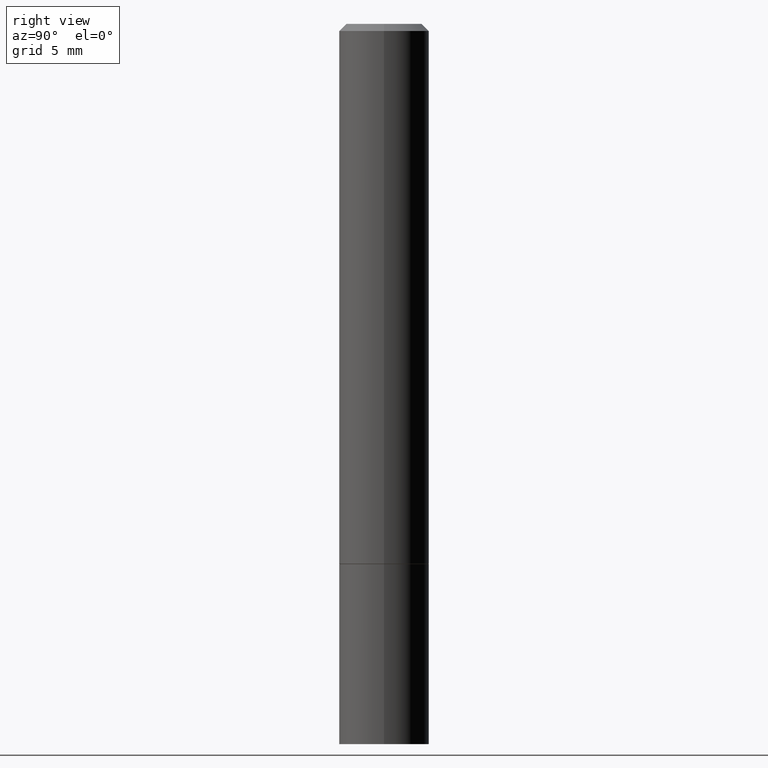
[diagram: clean part render]
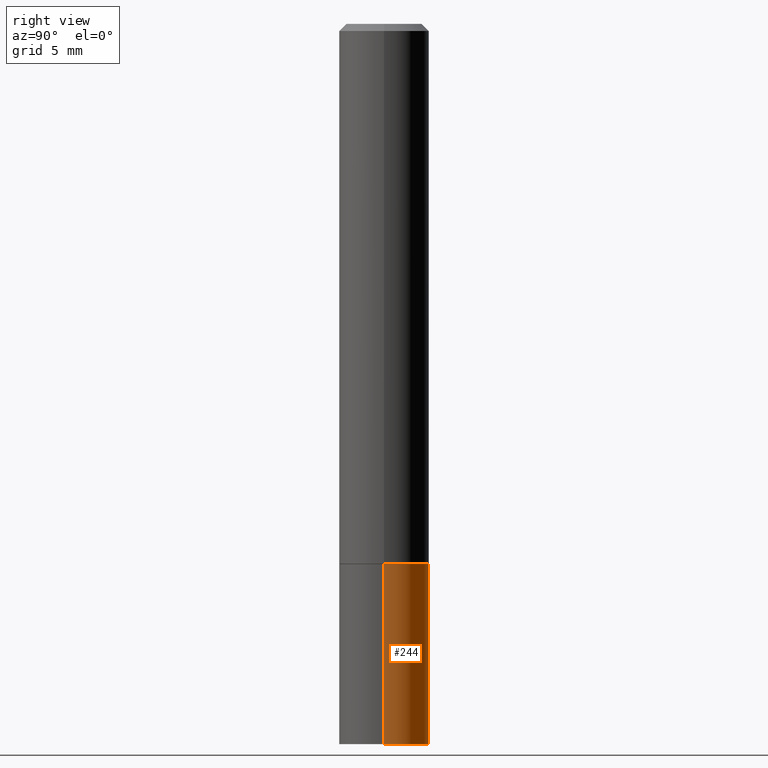
[diagram: same view with one face highlighted and labeled with its STEP entity id]
A machine part, right view. The second image highlights one B-rep face of the part: STEP entity #244.
In plain terms, the highlighted cylindrical surface (partial cylindrical patch) has radius 3.175 mm, axis along (-0, 0, 1).
Its self-contained STEP definition (entity closure, byte-faithful):
#10 = VECTOR ( 'NONE', #197, 39.37007874015748143 ) ;
#11 = DIRECTION ( 'NONE',  ( -2.445468806185136597E-29, 3.491481338843145583E-15, 1.000000000000000000 ) ) ;
#30 = LINE ( 'NONE', #253, #343 ) ;
#32 = CARTESIAN_POINT ( 'NONE',  ( 0.1250000000000000000, -7.855833012397075293E-15, -2.000000000000000000 ) ) ;
#43 = DIRECTION ( 'NONE',  ( 1.000000000000000000, -6.982962677686270655E-15, 0.000000000000000000 ) ) ;
#47 = CARTESIAN_POINT ( 'NONE',  ( -0.1250000000000000000, -5.221913923275378650E-15, -2.000000000000000000 ) ) ;
#53 = DIRECTION ( 'NONE',  ( 1.000000000000000000, -6.982962677686270655E-15, 0.000000000000000000 ) ) ;
#67 = ORIENTED_EDGE ( 'NONE', *, *, #250, .T. ) ;
#69 = CARTESIAN_POINT ( 'NONE',  ( 0.1250000000000000000, -6.110092342975501516E-15, -1.499999999999999778 ) ) ;
#77 = AXIS2_PLACEMENT_3D ( 'NONE', #287, #11, #143 ) ;
#78 = CARTESIAN_POINT ( 'NONE',  ( 3.668203209277704335E-29, -5.237222008264717388E-15, -1.499999999999999778 ) ) ;
#105 = ORIENTED_EDGE ( 'NONE', *, *, #332, .T. ) ;
#108 = CARTESIAN_POINT ( 'NONE',  ( 0.1250000000000000000, -8.728703347107833388E-16, 6.095220969744919741E-30 ) ) ;
#113 = VERTEX_POINT ( 'NONE', #47 ) ;
#117 = VERTEX_POINT ( 'NONE', #269 ) ;
#126 = CIRCLE ( 'NONE', #212, 0.1250000000000000000 ) ;
#139 = CARTESIAN_POINT ( 'NONE',  ( 4.890937612370273194E-29, -6.982962677686291165E-15, -2.000000000000000000 ) ) ;
#143 = DIRECTION ( 'NONE',  ( 1.000000000000000000, -6.982962677686266711E-15, 4.876176775795935793E-29 ) ) ;
#172 = FACE_OUTER_BOUND ( 'NONE', #263, .T. ) ;
#174 = DIRECTION ( 'NONE',  ( -2.445468806185136877E-29, 3.491481338843145188E-15, 1.000000000000000000 ) ) ;
#176 = VERTEX_POINT ( 'NONE', #69 ) ;
#197 = DIRECTION ( 'NONE',  ( -2.445468806185136877E-29, 3.491481338843145188E-15, 1.000000000000000000 ) ) ;
#212 = AXIS2_PLACEMENT_3D ( 'NONE', #78, #313, #53 ) ;
#238 = VERTEX_POINT ( 'NONE', #32 ) ;
#244 = ADVANCED_FACE ( 'NONE', ( #172 ), #261, .T. ) ;
#250 = EDGE_CURVE ( 'NONE', #238, #113, #277, .T. ) ;
#253 = CARTESIAN_POINT ( 'NONE',  ( -0.1250000000000000000, 8.881784197001252323E-16, -6.148668862818632227E-30 ) ) ;
#259 = DIRECTION ( 'NONE',  ( -2.445468806185136597E-29, 3.491481338843145583E-15, 1.000000000000000000 ) ) ;
#260 = LINE ( 'NONE', #108, #10 ) ;
#261 = CYLINDRICAL_SURFACE ( 'NONE', #77, 0.1250000000000000000 ) ;
#263 = EDGE_LOOP ( 'NONE', ( #67, #105, #333, #353 ) ) ;
#269 = CARTESIAN_POINT ( 'NONE',  ( -0.1250000000000000000, -5.221913923275378650E-15, -1.499999999999999778 ) ) ;
#277 = CIRCLE ( 'NONE', #352, 0.1250000000000000000 ) ;
#287 = CARTESIAN_POINT ( 'NONE',  ( 0.000000000000000000, 0.000000000000000000, 0.000000000000000000 ) ) ;
#306 = EDGE_CURVE ( 'NONE', #176, #117, #126, .T. ) ;
#313 = DIRECTION ( 'NONE',  ( -2.445468806185136597E-29, 3.491481338843145583E-15, 1.000000000000000000 ) ) ;
#332 = EDGE_CURVE ( 'NONE', #113, #117, #30, .T. ) ;
#333 = ORIENTED_EDGE ( 'NONE', *, *, #306, .F. ) ;
#343 = VECTOR ( 'NONE', #174, 39.37007874015748143 ) ;
#349 = EDGE_CURVE ( 'NONE', #238, #176, #260, .T. ) ;
#352 = AXIS2_PLACEMENT_3D ( 'NONE', #139, #259, #43 ) ;
#353 = ORIENTED_EDGE ( 'NONE', *, *, #349, .F. ) ;